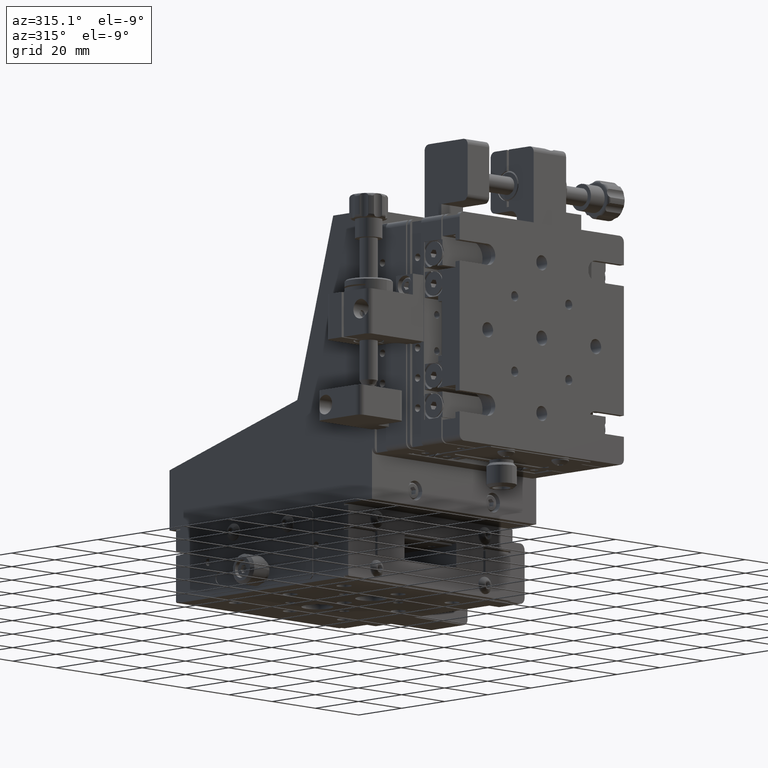
[diagram: clean part render]
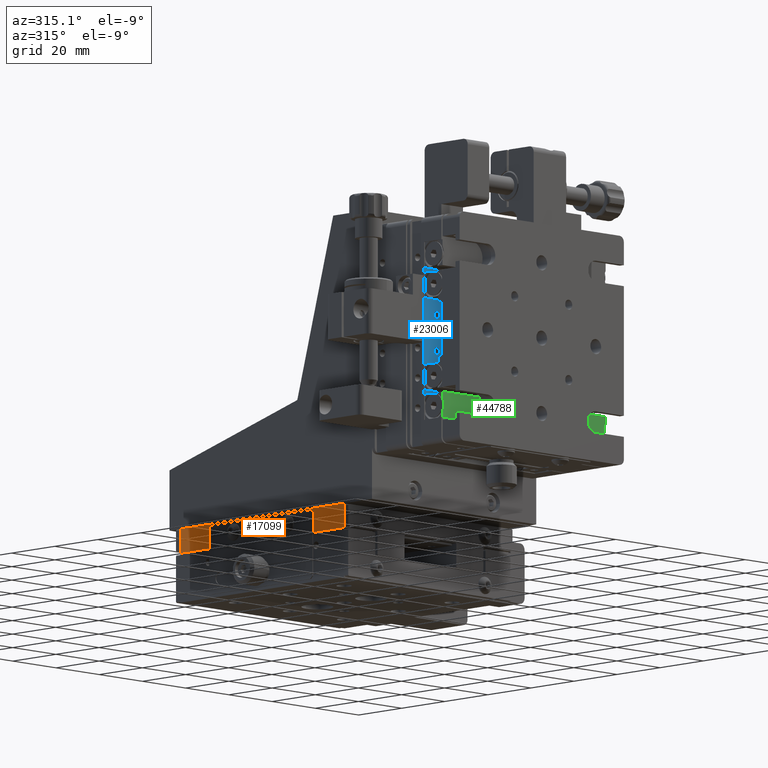
[diagram: same view with three faces highlighted in distinct colors, each labeled with its STEP entity id]
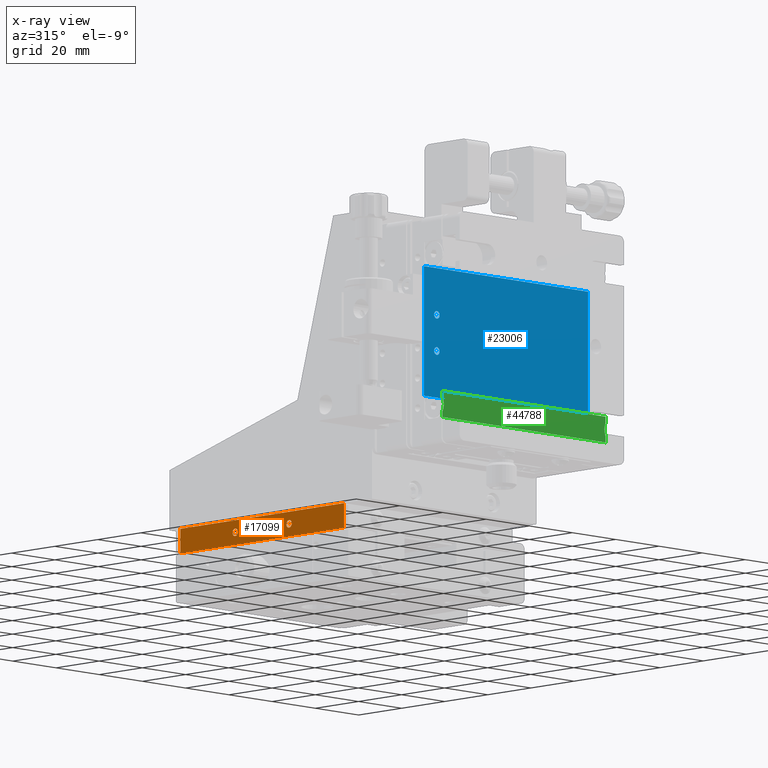
[diagram: x-ray of the same camera — body ghosted, the three highlighted faces saturated]
A machine part, auxiliary view with three faces highlighted in distinct colors.
The next image is the same camera in x-ray (body ghosted, the three faces saturated) — at least one of them is partly hidden behind the body in this view.
Their STEP definitions:

[orange] entity #17099 — the highlighted planar face has unit normal (1, -0, -0).
#877 = EDGE_LOOP ( 'NONE', ( #69256, #1767 ) ) ;
#1235 = CARTESIAN_POINT ( 'NONE',  ( -31.38252653792346400, 81.54002752014494600, 76.23096043845035300 ) ) ;
#1767 = ORIENTED_EDGE ( 'NONE', *, *, #59312, .F. ) ;
#2618 = DIRECTION ( 'NONE',  ( 0.0000000000000000000, 1.000000000000000000, 0.0000000000000000000 ) ) ;
#3522 = VERTEX_POINT ( 'NONE', #91229 ) ;
#5889 = AXIS2_PLACEMENT_3D ( 'NONE', #71829, #42416, #2618 ) ;
#9782 = LINE ( 'NONE', #47332, #42649 ) ;
#15401 = FACE_OUTER_BOUND ( 'NONE', #100120, .T. ) ;
#17099 = ADVANCED_FACE ( 'NONE', ( #95489, #112769, #15401 ), #57357, .F. ) ;
#18136 = EDGE_CURVE ( 'NONE', #22798, #84390, #52808, .T. ) ;
#18516 = DIRECTION ( 'NONE',  ( -1.040834085586084100E-016, 1.816132883294899400E-016, -1.000000000000000000 ) ) ;
#18803 = DIRECTION ( 'NONE',  ( 1.000000000000000000, -1.734723488056647200E-018, -1.040834085586084100E-016 ) ) ;
#19742 = VERTEX_POINT ( 'NONE', #115066 ) ;
#19839 = EDGE_LOOP ( 'NONE', ( #100607, #125337 ) ) ;
#21124 = AXIS2_PLACEMENT_3D ( 'NONE', #71838, #90833, #30180 ) ;
#21839 = CIRCLE ( 'NONE', #76935, 1.250000000000001100 ) ;
#22798 = VERTEX_POINT ( 'NONE', #41208 ) ;
#24410 = DIRECTION ( 'NONE',  ( -1.000000000000000000, 1.734723465406977300E-018, 1.040834085586084100E-016 ) ) ;
#28769 = EDGE_CURVE ( 'NONE', #124101, #22798, #9782, .T. ) ;
#30180 = DIRECTION ( 'NONE',  ( 0.0000000000000000000, 1.000000000000000000, 0.0000000000000000000 ) ) ;
#32200 = EDGE_CURVE ( 'NONE', #78853, #44352, #124518, .T. ) ;
#33598 = DIRECTION ( 'NONE',  ( 0.0000000000000000000, 1.000000000000000000, 0.0000000000000000000 ) ) ;
#37095 = VERTEX_POINT ( 'NONE', #58305 ) ;
#41208 = CARTESIAN_POINT ( 'NONE',  ( -31.38252653792345000, 130.7900275201449500, 80.23096043845021100 ) ) ;
#42416 = DIRECTION ( 'NONE',  ( -1.000000000000000000, 1.734723465406977300E-018, 1.040834085586084100E-016 ) ) ;
#42649 = VECTOR ( 'NONE', #126975, 1000.000000000000000 ) ;
#44352 = VERTEX_POINT ( 'NONE', #1235 ) ;
#47332 = CARTESIAN_POINT ( 'NONE',  ( -31.38252653792345000, 54.79002752014495300, 80.23096043845019700 ) ) ;
#51883 = EDGE_CURVE ( 'NONE', #124101, #37095, #115993, .T. ) ;
#52808 = LINE ( 'NONE', #110235, #81071 ) ;
#55353 = ORIENTED_EDGE ( 'NONE', *, *, #51883, .F. ) ;
#57190 = CARTESIAN_POINT ( 'NONE',  ( -31.38252653792345000, 54.79002752014495300, 72.13096043844979000 ) ) ;
#57357 = PLANE ( 'NONE',  #68571 ) ;
#58305 = CARTESIAN_POINT ( 'NONE',  ( -31.38252653792345000, 54.79002752014495300, 72.13096043844979000 ) ) ;
#59312 = EDGE_CURVE ( 'NONE', #19742, #3522, #82837, .T. ) ;
#59471 = CARTESIAN_POINT ( 'NONE',  ( -31.38252653792346400, 79.04002752014494600, 76.23096043845035300 ) ) ;
#64246 = DIRECTION ( 'NONE',  ( -1.040834085586084100E-016, 1.816132883294899400E-016, -1.000000000000000000 ) ) ;
#65812 = EDGE_CURVE ( 'NONE', #3522, #19742, #79621, .T. ) ;
#66274 = LINE ( 'NONE', #57190, #89952 ) ;
#68571 = AXIS2_PLACEMENT_3D ( 'NONE', #78855, #18803, #108836 ) ;
#69256 = ORIENTED_EDGE ( 'NONE', *, *, #65812, .F. ) ;
#71829 = CARTESIAN_POINT ( 'NONE',  ( -31.38252653792346400, 105.2900275201449500, 76.23096043845025300 ) ) ;
#71838 = CARTESIAN_POINT ( 'NONE',  ( -31.38252653792346400, 80.29002752014494600, 76.23096043845035300 ) ) ;
#74803 = CARTESIAN_POINT ( 'NONE',  ( -31.38252653792345000, 54.79002752014495300, 80.23096043845019700 ) ) ;
#76935 = AXIS2_PLACEMENT_3D ( 'NONE', #113584, #24410, #33598 ) ;
#78853 = VERTEX_POINT ( 'NONE', #59471 ) ;
#78855 = CARTESIAN_POINT ( 'NONE',  ( -31.38252653792345000, 54.79002752014495300, 80.23096043845019700 ) ) ;
#79621 = CIRCLE ( 'NONE', #113201, 1.250000000000001100 ) ;
#79852 = ORIENTED_EDGE ( 'NONE', *, *, #18136, .T. ) ;
#81071 = VECTOR ( 'NONE', #18516, 1000.000000000000000 ) ;
#82837 = CIRCLE ( 'NONE', #5889, 1.250000000000001100 ) ;
#84390 = VERTEX_POINT ( 'NONE', #122373 ) ;
#84470 = VECTOR ( 'NONE', #64246, 1000.000000000000000 ) ;
#84750 = EDGE_CURVE ( 'NONE', #37095, #84390, #66274, .T. ) ;
#89952 = VECTOR ( 'NONE', #98979, 1000.000000000000000 ) ;
#90833 = DIRECTION ( 'NONE',  ( -1.000000000000000000, 1.734723465406977300E-018, 1.040834085586084100E-016 ) ) ;
#91229 = CARTESIAN_POINT ( 'NONE',  ( -31.38252653792346400, 106.5400275201449500, 76.23096043845025300 ) ) ;
#94299 = ORIENTED_EDGE ( 'NONE', *, *, #84750, .F. ) ;
#95489 = FACE_BOUND ( 'NONE', #877, .T. ) ;
#96518 = ORIENTED_EDGE ( 'NONE', *, *, #28769, .T. ) ;
#97904 = CARTESIAN_POINT ( 'NONE',  ( -31.38252653792346400, 105.2900275201449500, 76.23096043845025300 ) ) ;
#98979 = DIRECTION ( 'NONE',  ( 1.734723488056666100E-018, 1.000000000000000000, 1.816132883391843500E-016 ) ) ;
#100120 = EDGE_LOOP ( 'NONE', ( #79852, #94299, #55353, #96518 ) ) ;
#100607 = ORIENTED_EDGE ( 'NONE', *, *, #123530, .F. ) ;
#108836 = DIRECTION ( 'NONE',  ( -1.734723488056666100E-018, -1.000000000000000000, -1.816132883391843500E-016 ) ) ;
#108880 = DIRECTION ( 'NONE',  ( -1.000000000000000000, 1.734723465406977300E-018, 1.040834085586084100E-016 ) ) ;
#110235 = CARTESIAN_POINT ( 'NONE',  ( -31.38252653792345000, 130.7900275201449500, 80.23096043845021100 ) ) ;
#112769 = FACE_BOUND ( 'NONE', #19839, .T. ) ;
#113201 = AXIS2_PLACEMENT_3D ( 'NONE', #97904, #108880, #128633 ) ;
#113584 = CARTESIAN_POINT ( 'NONE',  ( -31.38252653792346400, 80.29002752014494600, 76.23096043845035300 ) ) ;
#115066 = CARTESIAN_POINT ( 'NONE',  ( -31.38252653792346400, 104.0400275201449500, 76.23096043845025300 ) ) ;
#115993 = LINE ( 'NONE', #74803, #84470 ) ;
#117365 = CARTESIAN_POINT ( 'NONE',  ( -31.38252653792345000, 54.79002752014495300, 80.23096043845019700 ) ) ;
#122373 = CARTESIAN_POINT ( 'NONE',  ( -31.38252653792345000, 130.7900275201449500, 72.13096043844980400 ) ) ;
#123530 = EDGE_CURVE ( 'NONE', #44352, #78853, #21839, .T. ) ;
#124101 = VERTEX_POINT ( 'NONE', #117365 ) ;
#124518 = CIRCLE ( 'NONE', #21124, 1.250000000000001100 ) ;
#125337 = ORIENTED_EDGE ( 'NONE', *, *, #32200, .F. ) ;
#126975 = DIRECTION ( 'NONE',  ( 1.734723488056666100E-018, 1.000000000000000000, 1.816132883391843500E-016 ) ) ;
#128633 = DIRECTION ( 'NONE',  ( 0.0000000000000000000, 1.000000000000000000, 0.0000000000000000000 ) ) ;

[blue] entity #23006 — the highlighted planar face has unit normal (0, -1, 0).
#705 = PLANE ( 'NONE',  #116383 ) ;
#2874 = ORIENTED_EDGE ( 'NONE', *, *, #10350, .T. ) ;
#3873 = EDGE_CURVE ( 'NONE', #71533, #86862, #128943, .T. ) ;
#5736 = LINE ( 'NONE', #16462, #18296 ) ;
#5903 = VERTEX_POINT ( 'NONE', #113175 ) ;
#10350 = EDGE_CURVE ( 'NONE', #34821, #71533, #5736, .T. ) ;
#11312 = CARTESIAN_POINT ( 'NONE',  ( -31.38252653792361000, 17.69002752014454300, 111.7309604384502100 ) ) ;
#11473 = CIRCLE ( 'NONE', #54257, 1.249999999999973400 ) ;
#12799 = CARTESIAN_POINT ( 'NONE',  ( -106.3825265379236100, 17.69002752014454300, 111.7309604384502100 ) ) ;
#14215 = CARTESIAN_POINT ( 'NONE',  ( -25.38252653792362100, 17.69002752014454300, 128.4809604384502100 ) ) ;
#16177 = VECTOR ( 'NONE', #42017, 1000.000000000000000 ) ;
#16462 = CARTESIAN_POINT ( 'NONE',  ( -31.38252653792361000, 17.69002752014454000, 95.23096043845021100 ) ) ;
#18296 = VECTOR ( 'NONE', #57571, 1000.000000000000000 ) ;
#19553 = DIRECTION ( 'NONE',  ( -0.0000000000000000000, -1.000000000000000000, -0.0000000000000000000 ) ) ;
#20129 = ORIENTED_EDGE ( 'NONE', *, *, #33398, .F. ) ;
#22064 = EDGE_LOOP ( 'NONE', ( #2874, #118879, #124942, #119479 ) ) ;
#22387 = DIRECTION ( 'NONE',  ( 1.000000000000000000, 0.0000000000000000000, 0.0000000000000000000 ) ) ;
#23006 = ADVANCED_FACE ( 'NONE', ( #78989, #126220, #86863 ), #705, .T. ) ;
#23455 = DIRECTION ( 'NONE',  ( -0.0000000000000000000, -1.000000000000000000, -0.0000000000000000000 ) ) ;
#24880 = CARTESIAN_POINT ( 'NONE',  ( -106.3825265379236100, 17.69002752014454700, 154.7309604384501800 ) ) ;
#27068 = EDGE_CURVE ( 'NONE', #34821, #5903, #83165, .T. ) ;
#30681 = EDGE_LOOP ( 'NONE', ( #61307, #109089 ) ) ;
#31564 = EDGE_CURVE ( 'NONE', #5903, #86862, #31785, .T. ) ;
#31785 = LINE ( 'NONE', #53397, #16177 ) ;
#32145 = CARTESIAN_POINT ( 'NONE',  ( -25.38252653792362100, 17.69002752014454300, 140.4809604384502100 ) ) ;
#33398 = EDGE_CURVE ( 'NONE', #79706, #117933, #128966, .T. ) ;
#34821 = VERTEX_POINT ( 'NONE', #102777 ) ;
#36348 = DIRECTION ( 'NONE',  ( 0.0000000000000000000, 0.0000000000000000000, -1.000000000000000000 ) ) ;
#41398 = DIRECTION ( 'NONE',  ( 0.0000000000000000000, 0.0000000000000000000, -1.000000000000000000 ) ) ;
#42017 = DIRECTION ( 'NONE',  ( -0.0000000000000000000, -1.210272192541958900E-016, -1.000000000000000000 ) ) ;
#47987 = CARTESIAN_POINT ( 'NONE',  ( -25.38252653792362100, 17.69002752014454300, 139.2309604384502100 ) ) ;
#48901 = AXIS2_PLACEMENT_3D ( 'NONE', #66183, #103630, #36348 ) ;
#50124 = CARTESIAN_POINT ( 'NONE',  ( -106.3825265379236100, 17.69002752014454300, 111.7309604384502100 ) ) ;
#53397 = CARTESIAN_POINT ( 'NONE',  ( 44.61747346207639000, 17.69002752014454300, 111.7309604384502100 ) ) ;
#54257 = AXIS2_PLACEMENT_3D ( 'NONE', #101650, #23455, #41398 ) ;
#57571 = DIRECTION ( 'NONE',  ( 0.0000000000000000000, -1.210272192541958900E-016, -1.000000000000000000 ) ) ;
#58409 = CARTESIAN_POINT ( 'NONE',  ( 44.61747346207639000, 17.69002752014454300, 111.7309604384502100 ) ) ;
#60986 = CARTESIAN_POINT ( 'NONE',  ( -25.38252653792362100, 17.69002752014454300, 137.9809604384502100 ) ) ;
#61273 = VECTOR ( 'NONE', #22387, 1000.000000000000000 ) ;
#61307 = ORIENTED_EDGE ( 'NONE', *, *, #88423, .F. ) ;
#63433 = DIRECTION ( 'NONE',  ( 1.000000000000000000, 0.0000000000000000000, 0.0000000000000000000 ) ) ;
#66183 = CARTESIAN_POINT ( 'NONE',  ( -25.38252653792362100, 17.69002752014454300, 127.2309604384502300 ) ) ;
#68955 = CIRCLE ( 'NONE', #128807, 1.250000000000001100 ) ;
#71533 = VERTEX_POINT ( 'NONE', #11312 ) ;
#71624 = DIRECTION ( 'NONE',  ( 0.0000000000000000000, -1.210272192541958900E-016, -1.000000000000000000 ) ) ;
#72179 = DIRECTION ( 'NONE',  ( -0.0000000000000000000, -1.000000000000000000, -0.0000000000000000000 ) ) ;
#72273 = ORIENTED_EDGE ( 'NONE', *, *, #107937, .F. ) ;
#78989 = FACE_BOUND ( 'NONE', #30681, .T. ) ;
#79706 = VERTEX_POINT ( 'NONE', #14215 ) ;
#80140 = DIRECTION ( 'NONE',  ( 0.0000000000000000000, 0.0000000000000000000, -1.000000000000000000 ) ) ;
#80998 = CARTESIAN_POINT ( 'NONE',  ( -25.38252653792362100, 17.69002752014454300, 139.2309604384502100 ) ) ;
#83165 = LINE ( 'NONE', #24880, #103639 ) ;
#86862 = VERTEX_POINT ( 'NONE', #58409 ) ;
#86863 = FACE_OUTER_BOUND ( 'NONE', #22064, .T. ) ;
#88423 = EDGE_CURVE ( 'NONE', #124340, #122356, #68955, .T. ) ;
#96004 = CIRCLE ( 'NONE', #127470, 1.250000000000001100 ) ;
#96692 = EDGE_CURVE ( 'NONE', #122356, #124340, #96004, .T. ) ;
#101650 = CARTESIAN_POINT ( 'NONE',  ( -25.38252653792362100, 17.69002752014454300, 127.2309604384502300 ) ) ;
#102030 = DIRECTION ( 'NONE',  ( 0.0000000000000000000, -1.000000000000000000, 1.210272192541958900E-016 ) ) ;
#102777 = CARTESIAN_POINT ( 'NONE',  ( -31.38252653792361000, 17.69002752014454700, 154.7309604384501800 ) ) ;
#103630 = DIRECTION ( 'NONE',  ( -0.0000000000000000000, -1.000000000000000000, -0.0000000000000000000 ) ) ;
#103639 = VECTOR ( 'NONE', #63433, 1000.000000000000000 ) ;
#105977 = CARTESIAN_POINT ( 'NONE',  ( -25.38252653792362100, 17.69002752014454300, 125.9809604384502500 ) ) ;
#107937 = EDGE_CURVE ( 'NONE', #117933, #79706, #11473, .T. ) ;
#109089 = ORIENTED_EDGE ( 'NONE', *, *, #96692, .F. ) ;
#113175 = CARTESIAN_POINT ( 'NONE',  ( 44.61747346207639000, 17.69002752014454700, 154.7309604384501800 ) ) ;
#116383 = AXIS2_PLACEMENT_3D ( 'NONE', #50124, #102030, #71624 ) ;
#117933 = VERTEX_POINT ( 'NONE', #105977 ) ;
#118352 = DIRECTION ( 'NONE',  ( 0.0000000000000000000, 0.0000000000000000000, -1.000000000000000000 ) ) ;
#118879 = ORIENTED_EDGE ( 'NONE', *, *, #3873, .T. ) ;
#119479 = ORIENTED_EDGE ( 'NONE', *, *, #27068, .F. ) ;
#122356 = VERTEX_POINT ( 'NONE', #32145 ) ;
#124340 = VERTEX_POINT ( 'NONE', #60986 ) ;
#124942 = ORIENTED_EDGE ( 'NONE', *, *, #31564, .F. ) ;
#126220 = FACE_BOUND ( 'NONE', #127381, .T. ) ;
#127381 = EDGE_LOOP ( 'NONE', ( #72273, #20129 ) ) ;
#127470 = AXIS2_PLACEMENT_3D ( 'NONE', #47987, #19553, #118352 ) ;
#128807 = AXIS2_PLACEMENT_3D ( 'NONE', #80998, #72179, #80140 ) ;
#128943 = LINE ( 'NONE', #12799, #61273 ) ;
#128966 = CIRCLE ( 'NONE', #48901, 1.249999999999973400 ) ;

[green] entity #44788 — the highlighted planar face has unit normal (-0, 1, 0).
#687 = LINE ( 'NONE', #89751, #124739 ) ;
#1285 = CARTESIAN_POINT ( 'NONE',  ( 43.88202196210254200, 9.290027520144541000, 107.0076718341109700 ) ) ;
#2014 = DIRECTION ( 'NONE',  ( 1.355854680848614000E-030, 9.860761315262647600E-032, 1.000000000000000000 ) ) ;
#2756 = CARTESIAN_POINT ( 'NONE',  ( 44.36747346207623400, 9.290027520144548100, 105.7031353798353900 ) ) ;
#4436 = CARTESIAN_POINT ( 'NONE',  ( -31.13252653792351100, 9.290027520144599600, 110.2987854970657700 ) ) ;
#5058 = CARTESIAN_POINT ( 'NONE',  ( 44.36747346207623400, 9.290027520144590800, 103.7309604384505900 ) ) ;
#5579 = CARTESIAN_POINT ( 'NONE',  ( -30.95724571659838300, 9.290027520144537500, 106.0616569553311200 ) ) ;
#11613 = LINE ( 'NONE', #91962, #53920 ) ;
#11781 = CARTESIAN_POINT ( 'NONE',  ( 44.19219264075103100, 9.290027520144539300, 106.0616569553311600 ) ) ;
#12098 = EDGE_CURVE ( 'NONE', #78554, #87956, #20920, .T. ) ;
#13484 = EDGE_CURVE ( 'NONE', #87956, #41629, #11613, .T. ) ;
#15966 = VERTEX_POINT ( 'NONE', #67016 ) ;
#17657 = CARTESIAN_POINT ( 'NONE',  ( -31.13252653792356700, 9.290027520144541000, 103.7309604384505700 ) ) ;
#17769 = DIRECTION ( 'NONE',  ( -1.018799776557030700E-029, 1.000000000000000000, 9.860761315262325700E-032 ) ) ;
#19144 = VERTEX_POINT ( 'NONE', #4436 ) ;
#19678 = CARTESIAN_POINT ( 'NONE',  ( 44.04248891855951300, 9.290027520144537500, 106.4301093907023000 ) ) ;
#20920 = LINE ( 'NONE', #17657, #60120 ) ;
#22217 = CARTESIAN_POINT ( 'NONE',  ( -30.53242703091023800, 9.290027520144541000, 108.3977901297249100 ) ) ;
#22352 = VECTOR ( 'NONE', #2014, 1000.000000000000000 ) ;
#22668 = CARTESIAN_POINT ( 'NONE',  ( -31.13252653792351100, 9.290027520144599600, 110.2987854970657700 ) ) ;
#23881 = LINE ( 'NONE', #112175, #22352 ) ;
#23965 = CARTESIAN_POINT ( 'NONE',  ( -30.54717644401002400, 9.290027520144542800, 107.6024296592116100 ) ) ;
#24395 = CARTESIAN_POINT ( 'NONE',  ( -31.13252653792359600, 9.290027520144541000, 105.7031353798353600 ) ) ;
#26104 = CARTESIAN_POINT ( 'NONE',  ( -30.64707503794989700, 9.290027520144542800, 107.0076718341109400 ) ) ;
#26263 = EDGE_LOOP ( 'NONE', ( #64135, #102718, #59462, #56436, #75690, #113604, #72589, #111914 ) ) ;
#27749 = CARTESIAN_POINT ( 'NONE',  ( 44.36747346207629100, 9.290027520144642300, 110.2987854970658200 ) ) ;
#29678 = CARTESIAN_POINT ( 'NONE',  ( 43.78212336816270100, 9.290027520144539300, 107.6024296592116400 ) ) ;
#30572 = DIRECTION ( 'NONE',  ( 1.355854680848614000E-030, 9.860761315262647600E-032, 1.000000000000000000 ) ) ;
#38929 = EDGE_CURVE ( 'NONE', #41629, #101841, #113376, .T. ) ;
#41629 = VERTEX_POINT ( 'NONE', #2756 ) ;
#44788 = ADVANCED_FACE ( 'NONE', ( #70892 ), #47472, .F. ) ;
#45288 = CARTESIAN_POINT ( 'NONE',  ( 44.36747346207623400, 9.290027520144590800, 103.7309604384505900 ) ) ;
#47472 = PLANE ( 'NONE',  #97749 ) ;
#47685 = VERTEX_POINT ( 'NONE', #65527 ) ;
#50142 = DIRECTION ( 'NONE',  ( 1.355854680848614000E-030, 9.860761315262647600E-032, 1.000000000000000000 ) ) ;
#53920 = VECTOR ( 'NONE', #50142, 1000.000000000000000 ) ;
#56436 = ORIENTED_EDGE ( 'NONE', *, *, #79315, .F. ) ;
#57308 = LINE ( 'NONE', #82390, #107696 ) ;
#57450 = VECTOR ( 'NONE', #96734, 1000.000000000000000 ) ;
#58776 = DIRECTION ( 'NONE',  ( 1.000000000000000000, 1.018799776557030700E-029, 1.257247067695995300E-030 ) ) ;
#59462 = ORIENTED_EDGE ( 'NONE', *, *, #60063, .T. ) ;
#60063 = EDGE_CURVE ( 'NONE', #101841, #69639, #110995, .T. ) ;
#60120 = VECTOR ( 'NONE', #58776, 1000.000000000000000 ) ;
#63382 = CARTESIAN_POINT ( 'NONE',  ( -30.95639490779566900, 9.290027520144537500, 109.9385236666460300 ) ) ;
#64135 = ORIENTED_EDGE ( 'NONE', *, *, #13484, .T. ) ;
#65527 = CARTESIAN_POINT ( 'NONE',  ( -31.13252653792351100, 9.290027520144548100, 112.2809604384505600 ) ) ;
#67016 = CARTESIAN_POINT ( 'NONE',  ( -31.13252653792359600, 9.290027520144541000, 105.7031353798353600 ) ) ;
#67660 = CARTESIAN_POINT ( 'NONE',  ( -31.13252653792356700, 9.290027520144541000, 103.7309604384505700 ) ) ;
#69350 = CARTESIAN_POINT ( 'NONE',  ( -31.13252653792356700, 9.290027520144541000, 103.7309604384505700 ) ) ;
#69639 = VERTEX_POINT ( 'NONE', #75328 ) ;
#70460 = CARTESIAN_POINT ( 'NONE',  ( 43.76752340843362500, 9.290027520144541000, 107.8010054422735100 ) ) ;
#70892 = FACE_OUTER_BOUND ( 'NONE', #26263, .T. ) ;
#71331 = CARTESIAN_POINT ( 'NONE',  ( 43.83922994943758800, 9.290027520144541000, 107.2059540723220300 ) ) ;
#71771 = CARTESIAN_POINT ( 'NONE',  ( 44.36747346207623400, 9.290027520144548100, 105.7031353798353900 ) ) ;
#72589 = ORIENTED_EDGE ( 'NONE', *, *, #100160, .F. ) ;
#73497 = CARTESIAN_POINT ( 'NONE',  ( -30.80673324861632500, 9.290027520144542800, 109.5692936230345000 ) ) ;
#73934 = CARTESIAN_POINT ( 'NONE',  ( -30.53257648428093800, 9.290027520144541000, 107.8010054422734500 ) ) ;
#75328 = CARTESIAN_POINT ( 'NONE',  ( 44.36747346207629100, 9.290027520144590800, 112.2809604384505900 ) ) ;
#75690 = ORIENTED_EDGE ( 'NONE', *, *, #106406, .F. ) ;
#77571 = B_SPLINE_CURVE_WITH_KNOTS ( 'NONE', 3,
 ( #22668, #63382, #73497, #83669, #22217, #73934, #23965, #85843, #26104, #85416, #5579, #24395 ),
 .UNSPECIFIED., .F., .F.,
 ( 4, 2, 2, 2, 2, 4 ),
 ( 0.006239263212216435500, 0.007426415158691719100, 0.008613567105167002600, 0.009207143078404665700, 0.009800719051642327000, 0.01098787099811765000 ),
 .UNSPECIFIED. ) ;
#78554 = VERTEX_POINT ( 'NONE', #69350 ) ;
#79315 = EDGE_CURVE ( 'NONE', #47685, #69639, #687, .T. ) ;
#81035 = CARTESIAN_POINT ( 'NONE',  ( 43.76737395506294300, 9.290027520144541000, 108.3977901297249800 ) ) ;
#81478 = CARTESIAN_POINT ( 'NONE',  ( 43.82860981732729000, 9.290027520144541000, 108.8016104225193900 ) ) ;
#82390 = CARTESIAN_POINT ( 'NONE',  ( -31.13252653792356700, 9.290027520144541000, 103.7309604384505700 ) ) ;
#83669 = CARTESIAN_POINT ( 'NONE',  ( -30.59366289317458500, 9.290027520144541000, 108.8016104225192900 ) ) ;
#85416 = CARTESIAN_POINT ( 'NONE',  ( -30.80754199440686500, 9.290027520144537500, 106.4301093907023000 ) ) ;
#85843 = CARTESIAN_POINT ( 'NONE',  ( -30.60428302528491100, 9.290027520144542800, 107.2059540723219600 ) ) ;
#87946 = DIRECTION ( 'NONE',  ( -1.000000000000000000, -1.018799776557030700E-029, -1.257247067695995300E-030 ) ) ;
#87956 = VERTEX_POINT ( 'NONE', #45288 ) ;
#89304 = DIRECTION ( 'NONE',  ( 1.000000000000000000, 1.018799776557030700E-029, 1.257247067695995300E-030 ) ) ;
#89726 = EDGE_CURVE ( 'NONE', #19144, #15966, #77571, .T. ) ;
#89751 = CARTESIAN_POINT ( 'NONE',  ( -31.13252653792351100, 9.290027520144548100, 112.2809604384505600 ) ) ;
#89903 = CARTESIAN_POINT ( 'NONE',  ( 44.04168017276907000, 9.290027520144539300, 109.5692936230345800 ) ) ;
#91962 = CARTESIAN_POINT ( 'NONE',  ( 44.36747346207623400, 9.290027520144590800, 103.7309604384505900 ) ) ;
#96734 = DIRECTION ( 'NONE',  ( 1.355854680848614000E-030, 9.860761315262647600E-032, 1.000000000000000000 ) ) ;
#97749 = AXIS2_PLACEMENT_3D ( 'NONE', #67660, #17769, #87946 ) ;
#100039 = CARTESIAN_POINT ( 'NONE',  ( 44.19134183194841400, 9.290027520144541000, 109.9385236666461200 ) ) ;
#100160 = EDGE_CURVE ( 'NONE', #78554, #15966, #23881, .T. ) ;
#101841 = VERTEX_POINT ( 'NONE', #27749 ) ;
#102718 = ORIENTED_EDGE ( 'NONE', *, *, #38929, .T. ) ;
#106406 = EDGE_CURVE ( 'NONE', #19144, #47685, #57308, .T. ) ;
#107696 = VECTOR ( 'NONE', #30572, 1000.000000000000000 ) ;
#110995 = LINE ( 'NONE', #5058, #57450 ) ;
#111914 = ORIENTED_EDGE ( 'NONE', *, *, #12098, .T. ) ;
#112175 = CARTESIAN_POINT ( 'NONE',  ( -31.13252653792356700, 9.290027520144541000, 103.7309604384505700 ) ) ;
#113376 = B_SPLINE_CURVE_WITH_KNOTS ( 'NONE', 3,
 ( #71771, #11781, #19678, #1285, #71331, #29678, #70460, #81035, #81478, #89903, #100039, #120208 ),
 .UNSPECIFIED., .F., .F.,
 ( 4, 2, 2, 2, 2, 4 ),
 ( 0.006254188612769721200, 0.007445280139536479000, 0.008040825902919858400, 0.008636371666303236900, 0.009827463193069995600, 0.01101855471983675300 ),
 .UNSPECIFIED. ) ;
#113604 = ORIENTED_EDGE ( 'NONE', *, *, #89726, .T. ) ;
#120208 = CARTESIAN_POINT ( 'NONE',  ( 44.36747346207629100, 9.290027520144642300, 110.2987854970658200 ) ) ;
#124739 = VECTOR ( 'NONE', #89304, 1000.000000000000000 ) ;